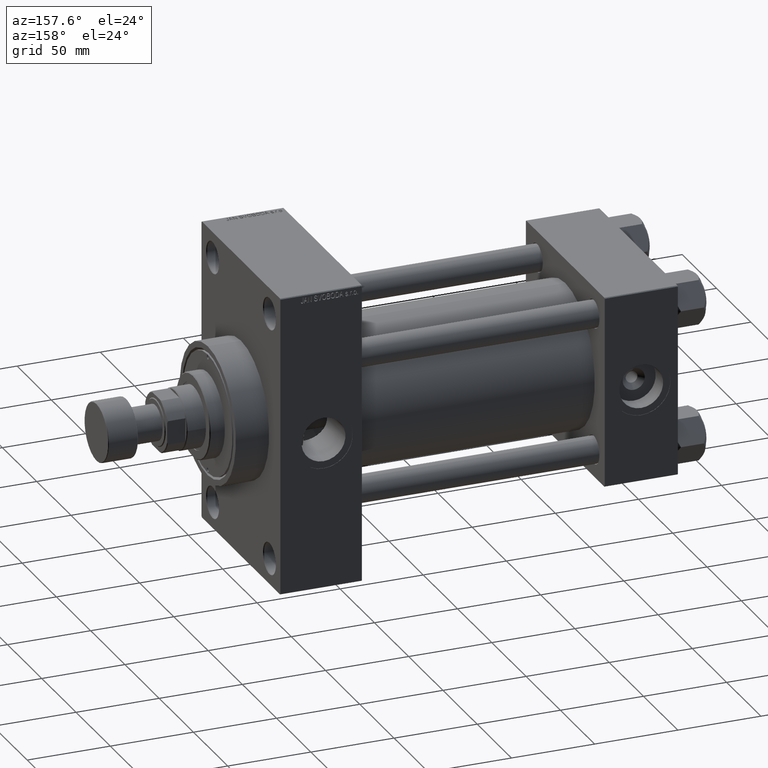
[diagram: clean part render]
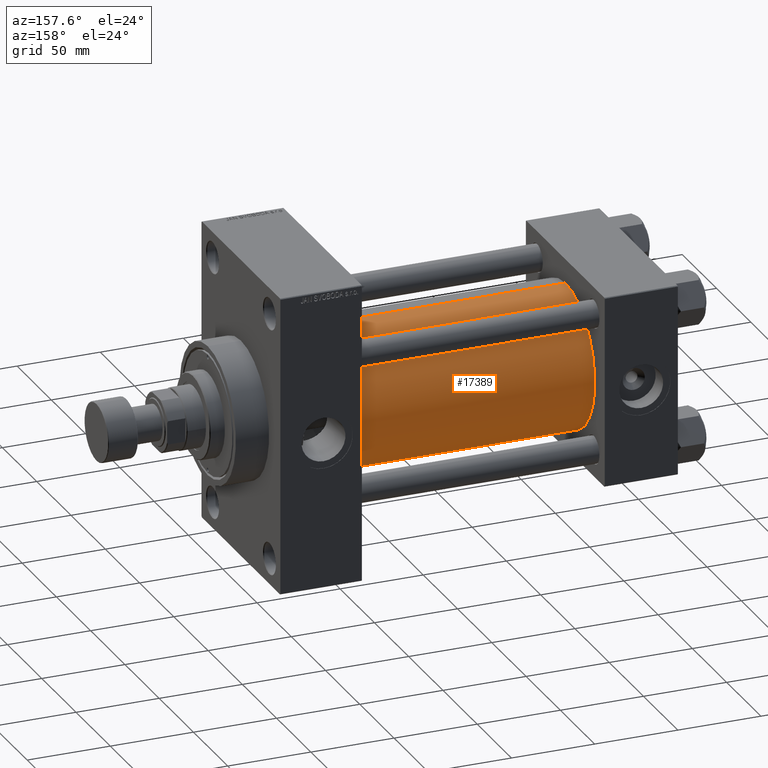
[diagram: same view with one face highlighted and labeled with its STEP entity id]
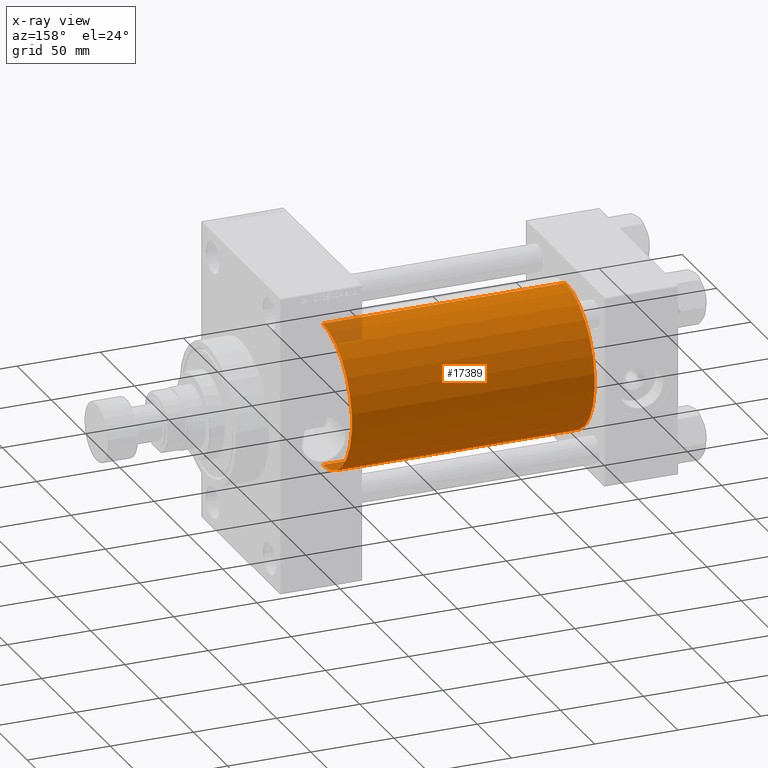
[diagram: x-ray of the same camera — body ghosted, the highlighted face saturated]
A machine part, auxiliary view. The second image highlights one B-rep face of the part: STEP entity #17389.
The next image is the same camera in x-ray: the body ghosted, the highlighted face saturated — about 2% of this face is hidden behind the body in this view.
In plain terms, the highlighted cylindrical surface (partial cylindrical patch) has radius 43 mm, axis along (-1, -0, -0).
Its self-contained STEP definition (entity closure, byte-faithful):
#1780 = CIRCLE ( 'NONE', #47036, 43.00000000000000000 ) ;
#5253 = VERTEX_POINT ( 'NONE', #41005 ) ;
#6317 = FACE_OUTER_BOUND ( 'NONE', #25441, .T. ) ;
#6584 = EDGE_CURVE ( 'NONE', #26358, #18697, #40659, .T. ) ;
#9042 = DIRECTION ( 'NONE',  ( -1.000000000000000000, -0.000000000000000000, -0.000000000000000000 ) ) ;
#10746 = DIRECTION ( 'NONE',  ( 1.000000000000000000, -0.000000000000000000, 0.000000000000000000 ) ) ;
#14926 = DIRECTION ( 'NONE',  ( 0.000000000000000000, 0.000000000000000000, -1.000000000000000000 ) ) ;
#17389 = ADVANCED_FACE ( 'NONE', ( #6317 ), #39586, .T. ) ;
#17793 = DIRECTION ( 'NONE',  ( -1.000000000000000000, -0.000000000000000000, -0.000000000000000000 ) ) ;
#18140 = EDGE_CURVE ( 'NONE', #5253, #22428, #34503, .T. ) ;
#18697 = VERTEX_POINT ( 'NONE', #37088 ) ;
#19374 = CIRCLE ( 'NONE', #39697, 43.00000000000000000 ) ;
#20369 = VECTOR ( 'NONE', #43821, 1000.000000000000000 ) ;
#22428 = VERTEX_POINT ( 'NONE', #44586 ) ;
#22503 = CARTESIAN_POINT ( 'NONE',  ( 190.0000000000000000, -2.602085213965210642E-15, 0.000000000000000000 ) ) ;
#23730 = CARTESIAN_POINT ( 'NONE',  ( 190.0000000000000000, -2.602085213965210642E-15, 43.00000000000000000 ) ) ;
#24506 = AXIS2_PLACEMENT_3D ( 'NONE', #40059, #17793, #43961 ) ;
#25441 = EDGE_LOOP ( 'NONE', ( #46531, #30864, #46431, #47321 ) ) ;
#26358 = VERTEX_POINT ( 'NONE', #23730 ) ;
#30864 = ORIENTED_EDGE ( 'NONE', *, *, #18140, .T. ) ;
#31068 = EDGE_CURVE ( 'NONE', #22428, #18697, #19374, .T. ) ;
#33264 = CARTESIAN_POINT ( 'NONE',  ( 43.99999999999998579, -2.602085213965210642E-15, 0.000000000000000000 ) ) ;
#34503 = LINE ( 'NONE', #38880, #46390 ) ;
#37088 = CARTESIAN_POINT ( 'NONE',  ( 43.99999999999998579, -2.602085213965210642E-15, 43.00000000000000000 ) ) ;
#37423 = DIRECTION ( 'NONE',  ( 1.000000000000000000, 0.000000000000000000, 0.000000000000000000 ) ) ;
#38880 = CARTESIAN_POINT ( 'NONE',  ( 190.0000000000000000, 2.663896022368408223E-15, -43.00000000000000000 ) ) ;
#39586 = CYLINDRICAL_SURFACE ( 'NONE', #24506, 43.00000000000000000 ) ;
#39697 = AXIS2_PLACEMENT_3D ( 'NONE', #33264, #10746, #39848 ) ;
#39848 = DIRECTION ( 'NONE',  ( 0.000000000000000000, 0.000000000000000000, 1.000000000000000000 ) ) ;
#39924 = CARTESIAN_POINT ( 'NONE',  ( 190.0000000000000000, -2.602085213965210642E-15, 43.00000000000000000 ) ) ;
#40059 = CARTESIAN_POINT ( 'NONE',  ( 190.0000000000000000, -2.602085213965210642E-15, 0.000000000000000000 ) ) ;
#40659 = LINE ( 'NONE', #39924, #20369 ) ;
#41005 = CARTESIAN_POINT ( 'NONE',  ( 190.0000000000000000, 2.663896022368408223E-15, -43.00000000000000000 ) ) ;
#43821 = DIRECTION ( 'NONE',  ( -1.000000000000000000, -0.000000000000000000, -0.000000000000000000 ) ) ;
#43961 = DIRECTION ( 'NONE',  ( 0.000000000000000000, 0.000000000000000000, 1.000000000000000000 ) ) ;
#44071 = EDGE_CURVE ( 'NONE', #5253, #26358, #1780, .T. ) ;
#44586 = CARTESIAN_POINT ( 'NONE',  ( 43.99999999999998579, 2.663896022368408223E-15, -43.00000000000000000 ) ) ;
#46390 = VECTOR ( 'NONE', #9042, 1000.000000000000000 ) ;
#46431 = ORIENTED_EDGE ( 'NONE', *, *, #31068, .T. ) ;
#46531 = ORIENTED_EDGE ( 'NONE', *, *, #44071, .F. ) ;
#47036 = AXIS2_PLACEMENT_3D ( 'NONE', #22503, #37423, #14926 ) ;
#47321 = ORIENTED_EDGE ( 'NONE', *, *, #6584, .F. ) ;